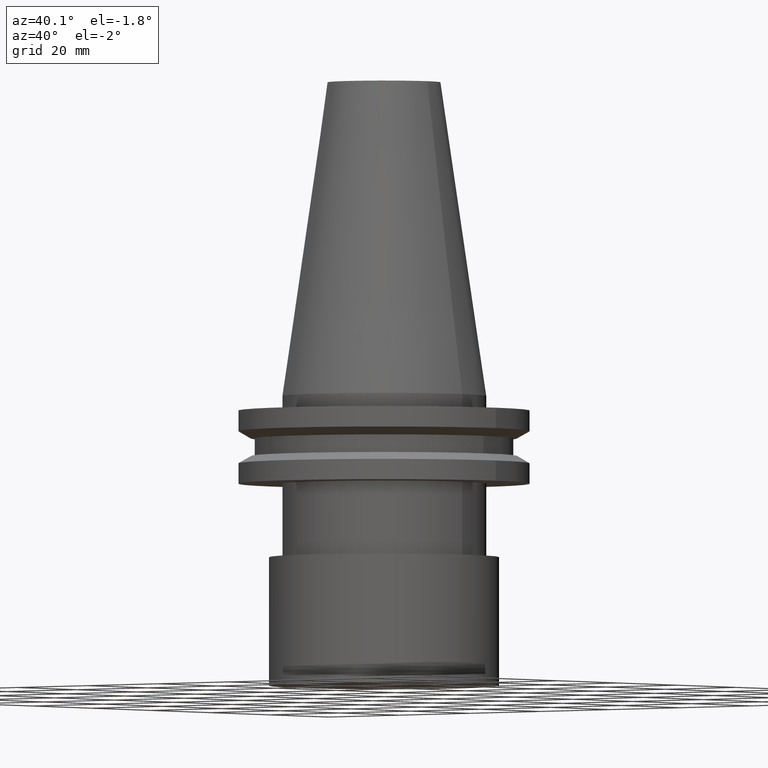
[diagram: clean part render]
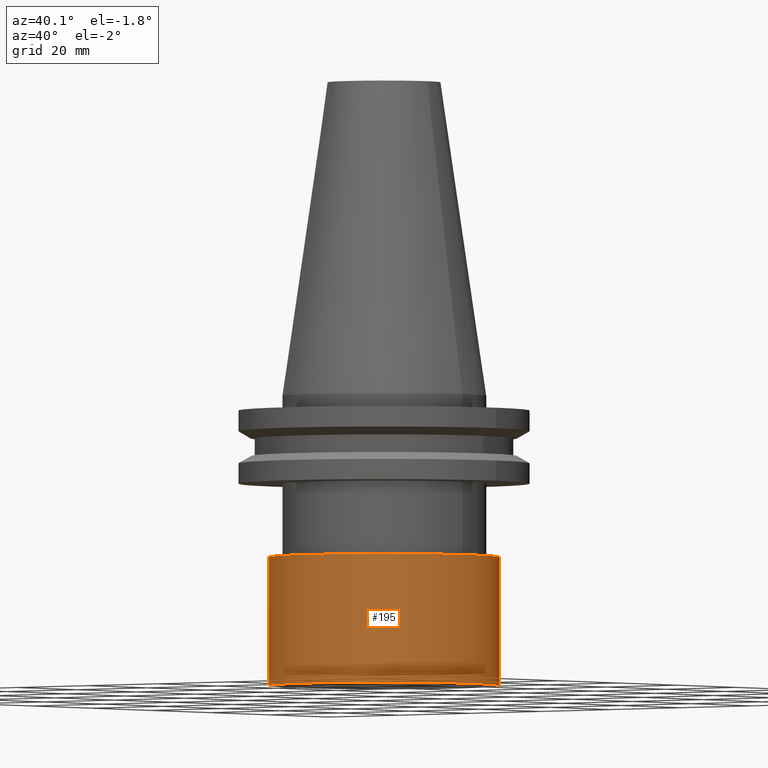
[diagram: same view with one face highlighted and labeled with its STEP entity id]
A machine part, auxiliary view. The second image highlights one B-rep face of the part: STEP entity #195.
In plain terms, the highlighted cylindrical surface (bore or boss wall) has radius 25 mm, axis along (-0, -0, -1).
Its self-contained STEP definition (entity closure, byte-faithful):
#4 = CYLINDRICAL_SURFACE ( 'NONE', #263, 25.00000000000000711 ) ;
#43 = EDGE_LOOP ( 'NONE', ( #50 ) ) ;
#50 = ORIENTED_EDGE ( 'NONE', *, *, #335, .T. ) ;
#83 = VERTEX_POINT ( 'NONE', #206 ) ;
#91 = EDGE_LOOP ( 'NONE', ( #152 ) ) ;
#97 = FACE_OUTER_BOUND ( 'NONE', #43, .T. ) ;
#113 = DIRECTION ( 'NONE',  ( -0.000000000000000000, -3.943406508882353361E-16, -1.000000000000000000 ) ) ;
#126 = CARTESIAN_POINT ( 'NONE',  ( 0.000000000000000000, -1.102182119232617911E-14, -63.00000000000000000 ) ) ;
#129 = FACE_OUTER_BOUND ( 'NONE', #91, .T. ) ;
#152 = ORIENTED_EDGE ( 'NONE', *, *, #222, .F. ) ;
#162 = CARTESIAN_POINT ( 'NONE',  ( 0.000000000000000000, -1.102182119232617438E-14, -62.99999999999998579 ) ) ;
#195 = ADVANCED_FACE ( 'NONE', ( #97, #129 ), #4, .T. ) ;
#206 = CARTESIAN_POINT ( 'NONE',  ( 0.000000000000000000, 25.00000000000000000, -35.04999999999999005 ) ) ;
#221 = DIRECTION ( 'NONE',  ( -0.000000000000000000, -3.943406508882353361E-16, -1.000000000000000000 ) ) ;
#222 = EDGE_CURVE ( 'NONE', #363, #363, #257, .T. ) ;
#235 = CIRCLE ( 'NONE', #393, 25.00000000000000000 ) ;
#238 = CARTESIAN_POINT ( 'NONE',  ( 0.000000000000000000, 25.00000000000000000, -63.00000000000000000 ) ) ;
#257 = CIRCLE ( 'NONE', #304, 25.00000000000001066 ) ;
#263 = AXIS2_PLACEMENT_3D ( 'NONE', #126, #338, #281 ) ;
#281 = DIRECTION ( 'NONE',  ( 0.000000000000000000, 1.000000000000000000, -5.551115123125780730E-16 ) ) ;
#284 = DIRECTION ( 'NONE',  ( 0.000000000000000000, 1.000000000000000000, -5.551115123125780730E-16 ) ) ;
#304 = AXIS2_PLACEMENT_3D ( 'NONE', #162, #221, #284 ) ;
#318 = CARTESIAN_POINT ( 'NONE',  ( 0.000000000000000000, 3.081487911019577365E-30, -35.04999999999998295 ) ) ;
#320 = DIRECTION ( 'NONE',  ( 0.000000000000000000, 1.000000000000000000, -2.775557561562891351E-16 ) ) ;
#335 = EDGE_CURVE ( 'NONE', #83, #83, #235, .T. ) ;
#338 = DIRECTION ( 'NONE',  ( -0.000000000000000000, -3.943406508882353361E-16, -1.000000000000000000 ) ) ;
#363 = VERTEX_POINT ( 'NONE', #238 ) ;
#393 = AXIS2_PLACEMENT_3D ( 'NONE', #318, #113, #320 ) ;